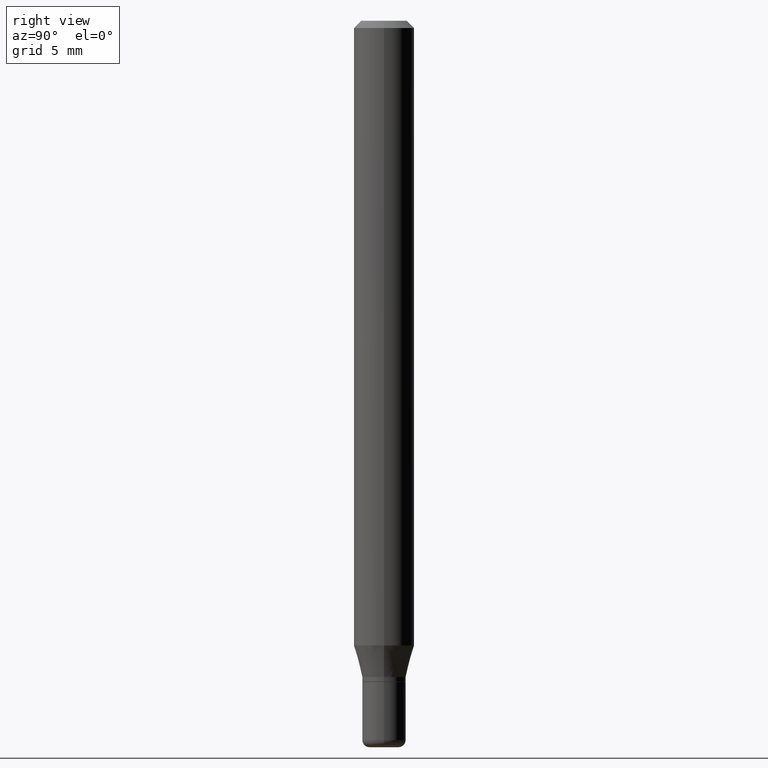
[diagram: clean part render]
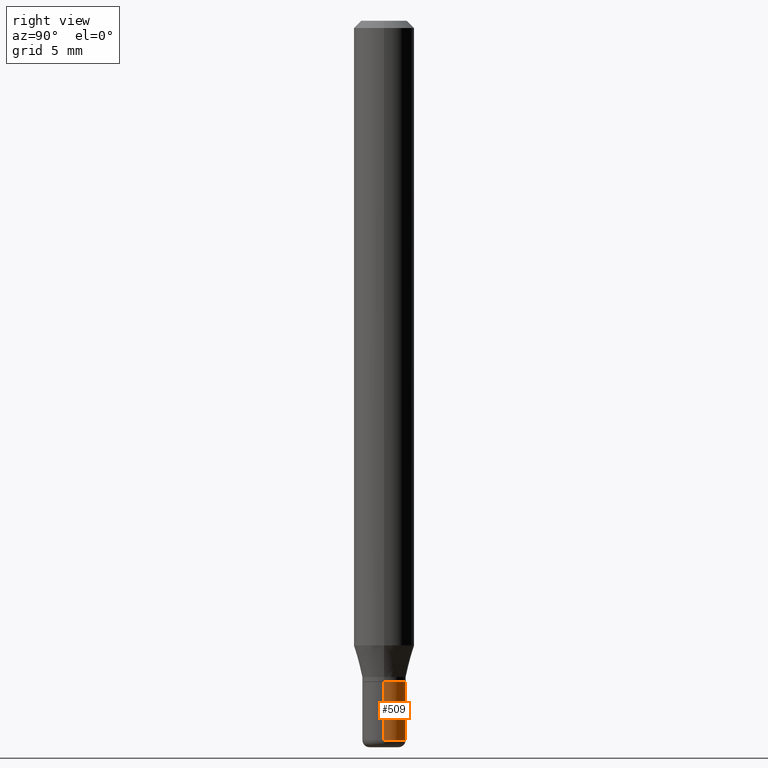
[diagram: same view with one face highlighted and labeled with its STEP entity id]
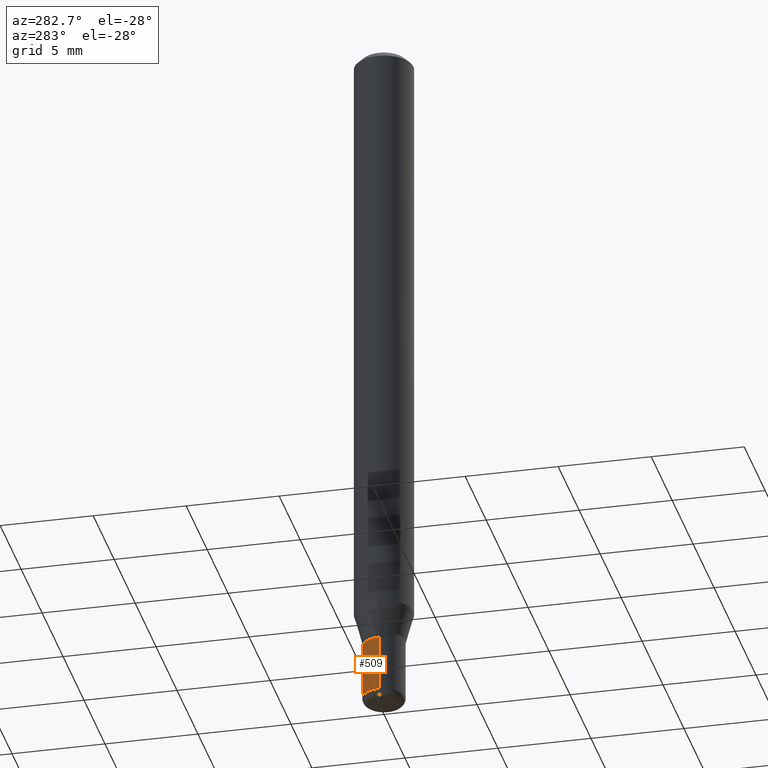
[diagram: same view with one face highlighted and labeled with its STEP entity id]
A machine part, right view. The second image highlights one B-rep face of the part: STEP entity #509.
A second angle (auxiliary view) of the same face is appended — the face is thin or edge-on in the first view.
In plain terms, the highlighted cylindrical surface (edge-blend (fillet) strip) has radius 1.143 mm, axis along (-0, 0, 1).
Its self-contained STEP definition (entity closure, byte-faithful):
#17 = AXIS2_PLACEMENT_3D ( 'NONE', #468, #247, #110 ) ;
#18 = AXIS2_PLACEMENT_3D ( 'NONE', #40, #479, #306 ) ;
#40 = CARTESIAN_POINT ( 'NONE',  ( 3.631521177184928138E-29, -5.184849788182071492E-15, -1.485000000000000098 ) ) ;
#49 = CIRCLE ( 'NONE', #18, 0.04499999999999998446 ) ;
#88 = DIRECTION ( 'NONE',  ( -2.445468806185136877E-29, 3.491481338843145188E-15, 1.000000000000000000 ) ) ;
#110 = DIRECTION ( 'NONE',  ( 1.000000000000000000, -6.982962677686269077E-15, 0.000000000000000000 ) ) ;
#140 = EDGE_CURVE ( 'NONE', #318, #161, #425, .T. ) ;
#152 = DIRECTION ( 'NONE',  ( 1.000000000000000000, -6.982962677686266711E-15, 4.876176775795935793E-29 ) ) ;
#161 = VERTEX_POINT ( 'NONE', #517 ) ;
#167 = ORIENTED_EDGE ( 'NONE', *, *, #351, .T. ) ;
#170 = VECTOR ( 'NONE', #376, 39.37007874015748143 ) ;
#182 = CARTESIAN_POINT ( 'NONE',  ( 0.04499999999999998446, -5.499083108677953967E-15, -1.485000000000000098 ) ) ;
#185 = FACE_OUTER_BOUND ( 'NONE', #457, .T. ) ;
#193 = DIRECTION ( 'NONE',  ( -2.445468806185136597E-29, 3.491481338843145583E-15, 1.000000000000000000 ) ) ;
#231 = CARTESIAN_POINT ( 'NONE',  ( 0.04499999999999999140, -3.142333204958819329E-16, 2.194279549108170616E-30 ) ) ;
#247 = DIRECTION ( 'NONE',  ( -2.445468806185136597E-29, 3.491481338843145583E-15, 1.000000000000000000 ) ) ;
#250 = AXIS2_PLACEMENT_3D ( 'NONE', #474, #193, #152 ) ;
#257 = EDGE_CURVE ( 'NONE', #312, #318, #390, .T. ) ;
#270 = CARTESIAN_POINT ( 'NONE',  ( -0.04499999999999998446, -4.655616676759437807E-15, -1.485000000000000098 ) ) ;
#288 = ORIENTED_EDGE ( 'NONE', *, *, #140, .F. ) ;
#306 = DIRECTION ( 'NONE',  ( 1.000000000000000000, -6.982962677686270655E-15, 0.000000000000000000 ) ) ;
#312 = VERTEX_POINT ( 'NONE', #182 ) ;
#318 = VERTEX_POINT ( 'NONE', #370 ) ;
#332 = LINE ( 'NONE', #372, #170 ) ;
#335 = CYLINDRICAL_SURFACE ( 'NONE', #250, 0.04499999999999999140 ) ;
#351 = EDGE_CURVE ( 'NONE', #454, #161, #332, .T. ) ;
#364 = ORIENTED_EDGE ( 'NONE', *, *, #257, .F. ) ;
#370 = CARTESIAN_POINT ( 'NONE',  ( 0.04499999999999999833, -5.080105348016775756E-15, -1.364999999999999991 ) ) ;
#372 = CARTESIAN_POINT ( 'NONE',  ( -0.04499999999999999140, 3.197442310920450225E-16, -2.213520790614707209E-30 ) ) ;
#376 = DIRECTION ( 'NONE',  ( -2.445468806185136877E-29, 3.491481338843145188E-15, 1.000000000000000000 ) ) ;
#385 = VECTOR ( 'NONE', #88, 39.37007874015748143 ) ;
#390 = LINE ( 'NONE', #231, #385 ) ;
#404 = ORIENTED_EDGE ( 'NONE', *, *, #473, .T. ) ;
#425 = CIRCLE ( 'NONE', #17, 0.04499999999999999833 ) ;
#454 = VERTEX_POINT ( 'NONE', #270 ) ;
#457 = EDGE_LOOP ( 'NONE', ( #404, #167, #288, #364 ) ) ;
#468 = CARTESIAN_POINT ( 'NONE',  ( 3.338064920442711836E-29, -4.765872027520893280E-15, -1.364999999999999991 ) ) ;
#473 = EDGE_CURVE ( 'NONE', #312, #454, #49, .T. ) ;
#474 = CARTESIAN_POINT ( 'NONE',  ( 0.000000000000000000, 0.000000000000000000, 0.000000000000000000 ) ) ;
#479 = DIRECTION ( 'NONE',  ( -2.445468806185136597E-29, 3.491481338843145583E-15, 1.000000000000000000 ) ) ;
#509 = ADVANCED_FACE ( 'NONE', ( #185 ), #335, .T. ) ;
#517 = CARTESIAN_POINT ( 'NONE',  ( -0.04499999999999999833, -4.655616676759437807E-15, -1.364999999999999991 ) ) ;